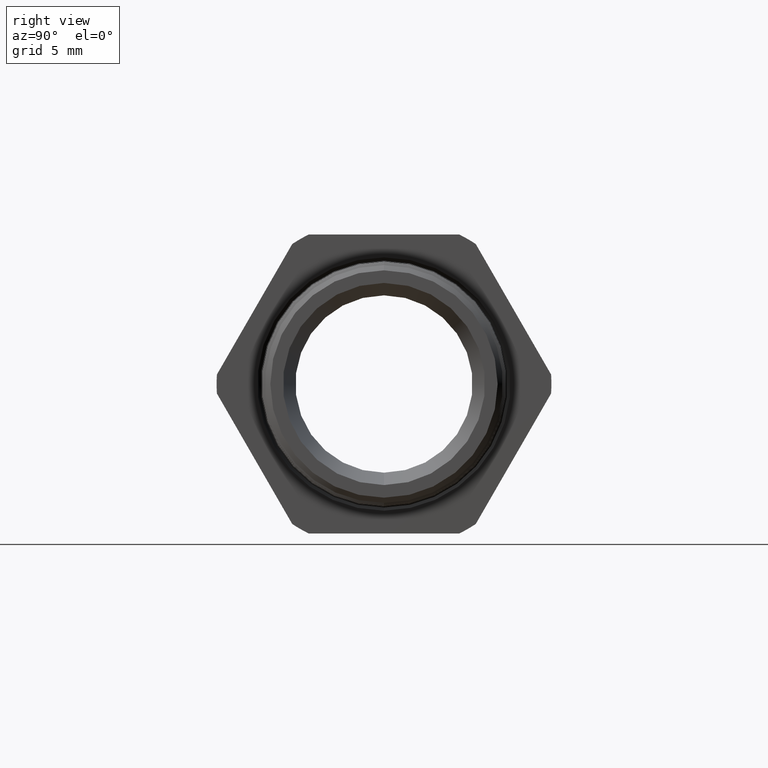
[diagram: clean part render]
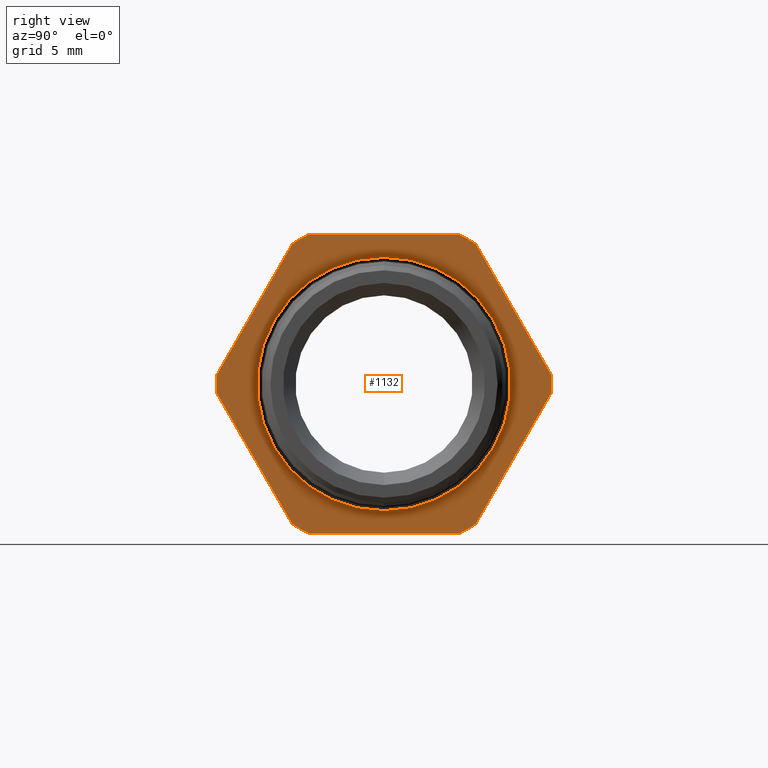
[diagram: same view with one face highlighted and labeled with its STEP entity id]
A machine part, right view. The second image highlights one B-rep face of the part: STEP entity #1132.
In plain terms, the highlighted planar face has unit normal (-1, 0, 0).
Its self-contained STEP definition (entity closure, byte-faithful):
#152 = EDGE_CURVE ( 'NONE', #169, #170, #1424, .T. ) ;
#169 = VERTEX_POINT ( 'NONE', #1450 ) ;
#170 = VERTEX_POINT ( 'NONE', #1449 ) ;
#1115 = VERTEX_POINT ( 'NONE', #2876 ) ;
#1121 = EDGE_LOOP ( 'NONE', ( #1194, #1123, #1126, #1129, #1145, #1159, #1175, #1164, #1187, #1165, #1167, #1177 ) ) ;
#1123 = ORIENTED_EDGE ( 'NONE', *, *, #1124, .F. ) ;
#1124 = EDGE_CURVE ( 'NONE', #1125, #1115, #2864, .T. ) ;
#1125 = VERTEX_POINT ( 'NONE', #2859 ) ;
#1126 = ORIENTED_EDGE ( 'NONE', *, *, #1127, .T. ) ;
#1127 = EDGE_CURVE ( 'NONE', #1125, #1128, #2858, .T. ) ;
#1128 = VERTEX_POINT ( 'NONE', #2854 ) ;
#1129 = ORIENTED_EDGE ( 'NONE', *, *, #1143, .F. ) ;
#1132 = ADVANCED_FACE ( 'NONE', ( #2910, #2909 ), #2853, .F. ) ;
#1143 = EDGE_CURVE ( 'NONE', #1144, #1128, #2886, .T. ) ;
#1144 = VERTEX_POINT ( 'NONE', #2881 ) ;
#1145 = ORIENTED_EDGE ( 'NONE', *, *, #1146, .T. ) ;
#1146 = EDGE_CURVE ( 'NONE', #1144, #1147, #2943, .T. ) ;
#1147 = VERTEX_POINT ( 'NONE', #2939 ) ;
#1159 = ORIENTED_EDGE ( 'NONE', *, *, #1173, .F. ) ;
#1160 = VERTEX_POINT ( 'NONE', #2917 ) ;
#1161 = EDGE_CURVE ( 'NONE', #1162, #1172, #2916, .T. ) ;
#1162 = VERTEX_POINT ( 'NONE', #2911 ) ;
#1163 = EDGE_CURVE ( 'NONE', #1168, #1172, #2973, .T. ) ;
#1164 = ORIENTED_EDGE ( 'NONE', *, *, #1161, .F. ) ;
#1165 = ORIENTED_EDGE ( 'NONE', *, *, #1166, .F. ) ;
#1166 = EDGE_CURVE ( 'NONE', #1171, #1174, #2969, .T. ) ;
#1167 = ORIENTED_EDGE ( 'NONE', *, *, #1176, .T. ) ;
#1168 = VERTEX_POINT ( 'NONE', #2964 ) ;
#1169 = EDGE_CURVE ( 'NONE', #1196, #1160, #2963, .T. ) ;
#1170 = ORIENTED_EDGE ( 'NONE', *, *, #1179, .F. ) ;
#1171 = VERTEX_POINT ( 'NONE', #2958 ) ;
#1172 = VERTEX_POINT ( 'NONE', #2957 ) ;
#1173 = EDGE_CURVE ( 'NONE', #1168, #1147, #2956, .T. ) ;
#1174 = VERTEX_POINT ( 'NONE', #2951 ) ;
#1175 = ORIENTED_EDGE ( 'NONE', *, *, #1163, .T. ) ;
#1176 = EDGE_CURVE ( 'NONE', #1171, #1160, #2950, .T. ) ;
#1177 = ORIENTED_EDGE ( 'NONE', *, *, #1169, .F. ) ;
#1178 = EDGE_LOOP ( 'NONE', ( #1170, #1180 ) ) ;
#1179 = EDGE_CURVE ( 'NONE', #170, #169, #2946, .T. ) ;
#1180 = ORIENTED_EDGE ( 'NONE', *, *, #152, .F. ) ;
#1187 = ORIENTED_EDGE ( 'NONE', *, *, #1188, .T. ) ;
#1188 = EDGE_CURVE ( 'NONE', #1162, #1174, #2996, .T. ) ;
#1194 = ORIENTED_EDGE ( 'NONE', *, *, #1195, .T. ) ;
#1195 = EDGE_CURVE ( 'NONE', #1196, #1115, #2984, .T. ) ;
#1196 = VERTEX_POINT ( 'NONE', #2980 ) ;
#1421 = DIRECTION ( 'NONE',  ( 0.0000000000000000000, 0.0000000000000000000, 1.000000000000000000 ) ) ;
#1422 = DIRECTION ( 'NONE',  ( 1.000000000000000000, 0.0000000000000000000, 0.0000000000000000000 ) ) ;
#1423 = AXIS2_PLACEMENT_3D ( 'NONE', #1428, #1422, #1421 ) ;
#1424 = CIRCLE ( 'NONE', #1423, 0.2499999999999997500 ) ;
#1428 = CARTESIAN_POINT ( 'NONE',  ( 1.365923996832131600E-016, 0.0000000000000000000, 0.0000000000000000000 ) ) ;
#1449 = CARTESIAN_POINT ( 'NONE',  ( 1.365923996832131600E-016, 0.0000000000000000000, -0.2499999999999997500 ) ) ;
#1450 = CARTESIAN_POINT ( 'NONE',  ( 1.365923996832131600E-016, 3.061616997868379900E-017, 0.2499999999999997500 ) ) ;
#2853 = PLANE ( 'NONE',  #2908 ) ;
#2854 = CARTESIAN_POINT ( 'NONE',  ( 0.0000000000000000000, 0.1487923385124379500, -0.2950000000000002600 ) ) ;
#2855 = DIRECTION ( 'NONE',  ( 0.0000000000000000000, 1.000000000000000000, 0.0000000000000000000 ) ) ;
#2856 = VECTOR ( 'NONE', #2855, 39.37007874015748100 ) ;
#2857 = CARTESIAN_POINT ( 'NONE',  ( 0.0000000000000000000, -0.1487923385124379500, -0.2950000000000002600 ) ) ;
#2858 = LINE ( 'NONE', #2857, #2856 ) ;
#2859 = CARTESIAN_POINT ( 'NONE',  ( 0.0000000000000000000, -0.1487923385124378900, -0.2950000000000003200 ) ) ;
#2860 = DIRECTION ( 'NONE',  ( 0.0000000000000000000, 0.0000000000000000000, 1.000000000000000000 ) ) ;
#2861 = DIRECTION ( 'NONE',  ( -1.000000000000000000, 0.0000000000000000000, 0.0000000000000000000 ) ) ;
#2862 = CARTESIAN_POINT ( 'NONE',  ( 1.365923996832131600E-016, 0.0000000000000000000, 0.0000000000000000000 ) ) ;
#2863 = AXIS2_PLACEMENT_3D ( 'NONE', #2862, #2861, #2860 ) ;
#2864 = CIRCLE ( 'NONE', #2863, 0.3304000000000001400 ) ;
#2876 = CARTESIAN_POINT ( 'NONE',  ( 0.0000000000000000000, -0.1810813248601903500, -0.2763579450402652300 ) ) ;
#2881 = CARTESIAN_POINT ( 'NONE',  ( 0.0000000000000000000, 0.1810813248601902400, -0.2763579450402653400 ) ) ;
#2882 = DIRECTION ( 'NONE',  ( 0.0000000000000000000, 0.0000000000000000000, 1.000000000000000000 ) ) ;
#2883 = DIRECTION ( 'NONE',  ( -1.000000000000000000, 0.0000000000000000000, 0.0000000000000000000 ) ) ;
#2884 = CARTESIAN_POINT ( 'NONE',  ( 1.365923996832131600E-016, 0.0000000000000000000, 0.0000000000000000000 ) ) ;
#2885 = AXIS2_PLACEMENT_3D ( 'NONE', #2884, #2883, #2882 ) ;
#2886 = CIRCLE ( 'NONE', #2885, 0.3304000000000001400 ) ;
#2905 = DIRECTION ( 'NONE',  ( 0.0000000000000000000, 0.0000000000000000000, 1.000000000000000000 ) ) ;
#2906 = DIRECTION ( 'NONE',  ( -1.000000000000000000, 0.0000000000000000000, 0.0000000000000000000 ) ) ;
#2907 = CARTESIAN_POINT ( 'NONE',  ( 1.365923996832131600E-016, 0.3304000000000001400, 0.0000000000000000000 ) ) ;
#2908 = AXIS2_PLACEMENT_3D ( 'NONE', #2907, #2906, #2905 ) ;
#2909 = FACE_BOUND ( 'NONE', #1178, .T. ) ;
#2910 = FACE_OUTER_BOUND ( 'NONE', #1121, .T. ) ;
#2911 = CARTESIAN_POINT ( 'NONE',  ( 0.0000000000000000000, 0.1487923385124394500, 0.2949999999999994800 ) ) ;
#2912 = DIRECTION ( 'NONE',  ( 0.0000000000000000000, 0.0000000000000000000, 1.000000000000000000 ) ) ;
#2913 = DIRECTION ( 'NONE',  ( -1.000000000000000000, 0.0000000000000000000, 0.0000000000000000000 ) ) ;
#2914 = CARTESIAN_POINT ( 'NONE',  ( 1.365923996832131600E-016, 0.0000000000000000000, 0.0000000000000000000 ) ) ;
#2915 = AXIS2_PLACEMENT_3D ( 'NONE', #2914, #2913, #2912 ) ;
#2916 = CIRCLE ( 'NONE', #2915, 0.3304000000000001400 ) ;
#2917 = CARTESIAN_POINT ( 'NONE',  ( 0.0000000000000000000, -0.3298736633726285800, 0.01864205495973494200 ) ) ;
#2939 = CARTESIAN_POINT ( 'NONE',  ( 0.0000000000000000000, 0.3298736633726285800, -0.01864205495973482100 ) ) ;
#2940 = DIRECTION ( 'NONE',  ( 0.0000000000000000000, 0.5000000000000001100, 0.8660254037844386000 ) ) ;
#2941 = VECTOR ( 'NONE', #2940, 39.37007874015748900 ) ;
#2942 = CARTESIAN_POINT ( 'NONE',  ( 0.0000000000000000000, 0.1810813248601902100, -0.2763579450402653400 ) ) ;
#2943 = LINE ( 'NONE', #2942, #2941 ) ;
#2944 = CARTESIAN_POINT ( 'NONE',  ( 1.365923996832131600E-016, 0.0000000000000000000, 0.0000000000000000000 ) ) ;
#2945 = AXIS2_PLACEMENT_3D ( 'NONE', #2944, #3007, #3006 ) ;
#2946 = CIRCLE ( 'NONE', #2945, 0.2499999999999997500 ) ;
#2947 = DIRECTION ( 'NONE',  ( 0.0000000000000000000, -0.5000000000000001100, -0.8660254037844384900 ) ) ;
#2948 = VECTOR ( 'NONE', #2947, 39.37007874015748900 ) ;
#2949 = CARTESIAN_POINT ( 'NONE',  ( 0.0000000000000000000, -0.1810813248601903500, 0.2763579450402652300 ) ) ;
#2950 = LINE ( 'NONE', #2949, #2948 ) ;
#2951 = CARTESIAN_POINT ( 'NONE',  ( 0.0000000000000000000, -0.1487923385124393900, 0.2949999999999994300 ) ) ;
#2952 = DIRECTION ( 'NONE',  ( 0.0000000000000000000, 0.0000000000000000000, 1.000000000000000000 ) ) ;
#2953 = DIRECTION ( 'NONE',  ( -1.000000000000000000, 0.0000000000000000000, 0.0000000000000000000 ) ) ;
#2954 = CARTESIAN_POINT ( 'NONE',  ( 1.365923996832131600E-016, 0.0000000000000000000, 0.0000000000000000000 ) ) ;
#2955 = AXIS2_PLACEMENT_3D ( 'NONE', #2954, #2953, #2952 ) ;
#2956 = CIRCLE ( 'NONE', #2955, 0.3304000000000001400 ) ;
#2957 = CARTESIAN_POINT ( 'NONE',  ( 0.0000000000000000000, 0.1810813248601896000, 0.2763579450402657800 ) ) ;
#2958 = CARTESIAN_POINT ( 'NONE',  ( 0.0000000000000000000, -0.1810813248601902400, 0.2763579450402652800 ) ) ;
#2959 = DIRECTION ( 'NONE',  ( 0.0000000000000000000, 0.0000000000000000000, 1.000000000000000000 ) ) ;
#2960 = DIRECTION ( 'NONE',  ( -1.000000000000000000, 0.0000000000000000000, 0.0000000000000000000 ) ) ;
#2961 = CARTESIAN_POINT ( 'NONE',  ( 1.365923996832131600E-016, 0.0000000000000000000, 0.0000000000000000000 ) ) ;
#2962 = AXIS2_PLACEMENT_3D ( 'NONE', #2961, #2960, #2959 ) ;
#2963 = CIRCLE ( 'NONE', #2962, 0.3304000000000001400 ) ;
#2964 = CARTESIAN_POINT ( 'NONE',  ( 0.0000000000000000000, 0.3298736633726286900, 0.01864205495973385000 ) ) ;
#2965 = DIRECTION ( 'NONE',  ( 0.0000000000000000000, 0.0000000000000000000, 1.000000000000000000 ) ) ;
#2966 = DIRECTION ( 'NONE',  ( -1.000000000000000000, 0.0000000000000000000, 0.0000000000000000000 ) ) ;
#2967 = CARTESIAN_POINT ( 'NONE',  ( 1.365923996832131600E-016, 0.0000000000000000000, 0.0000000000000000000 ) ) ;
#2968 = AXIS2_PLACEMENT_3D ( 'NONE', #2967, #2966, #2965 ) ;
#2969 = CIRCLE ( 'NONE', #2968, 0.3304000000000001400 ) ;
#2970 = DIRECTION ( 'NONE',  ( 0.0000000000000000000, -0.4999999999999998900, 0.8660254037844386000 ) ) ;
#2971 = VECTOR ( 'NONE', #2970, 39.37007874015748900 ) ;
#2972 = CARTESIAN_POINT ( 'NONE',  ( 0.0000000000000000000, 0.3298736633726286900, 0.01864205495973385000 ) ) ;
#2973 = LINE ( 'NONE', #2972, #2971 ) ;
#2980 = CARTESIAN_POINT ( 'NONE',  ( 0.0000000000000000000, -0.3298736633726286300, -0.01864205495973494200 ) ) ;
#2981 = DIRECTION ( 'NONE',  ( 0.0000000000000000000, 0.5000000000000001100, -0.8660254037844384900 ) ) ;
#2982 = VECTOR ( 'NONE', #2981, 39.37007874015748900 ) ;
#2983 = CARTESIAN_POINT ( 'NONE',  ( 0.0000000000000000000, -0.3298736633726285800, -0.01864205495973494200 ) ) ;
#2984 = LINE ( 'NONE', #2983, #2982 ) ;
#2990 = DIRECTION ( 'NONE',  ( 0.0000000000000000000, -1.000000000000000000, 0.0000000000000000000 ) ) ;
#2991 = VECTOR ( 'NONE', #2990, 39.37007874015748100 ) ;
#2992 = CARTESIAN_POINT ( 'NONE',  ( 0.0000000000000000000, 0.1487923385124393900, 0.2949999999999994300 ) ) ;
#2996 = LINE ( 'NONE', #2992, #2991 ) ;
#3006 = DIRECTION ( 'NONE',  ( 0.0000000000000000000, 0.0000000000000000000, 1.000000000000000000 ) ) ;
#3007 = DIRECTION ( 'NONE',  ( 1.000000000000000000, 0.0000000000000000000, 0.0000000000000000000 ) ) ;